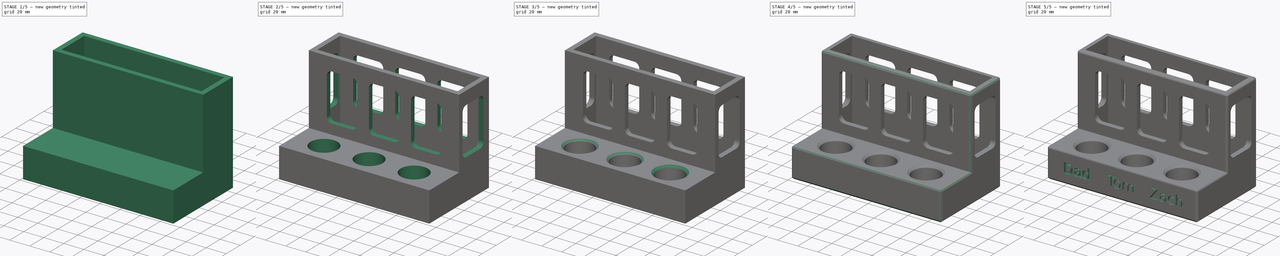
[diagram: build sequence overview — one tinted view per stage of 5, left to right]
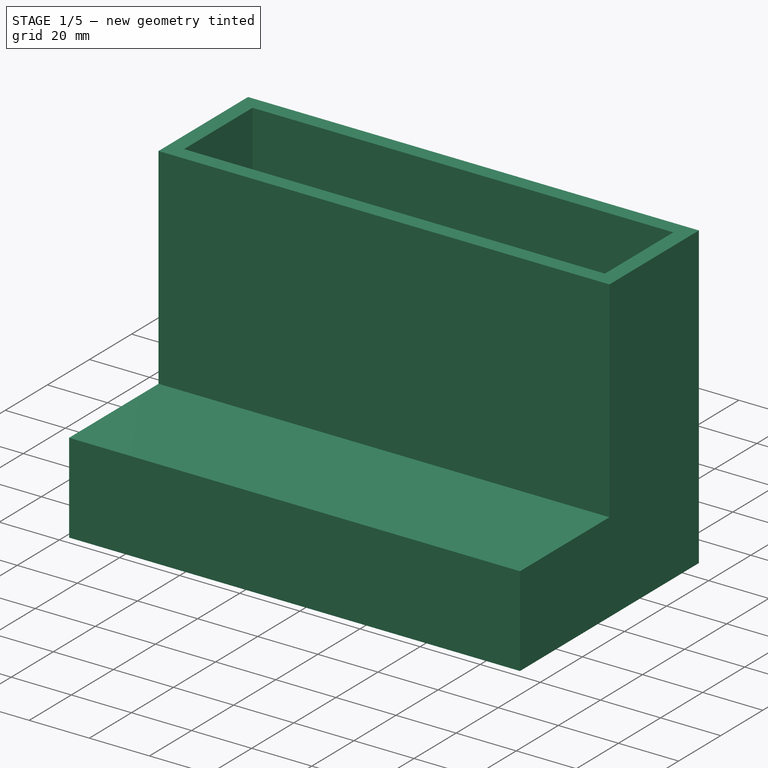
[diagram: stage 1 of 5 — iso view after this stage's code; geometry added in this stage tinted green]
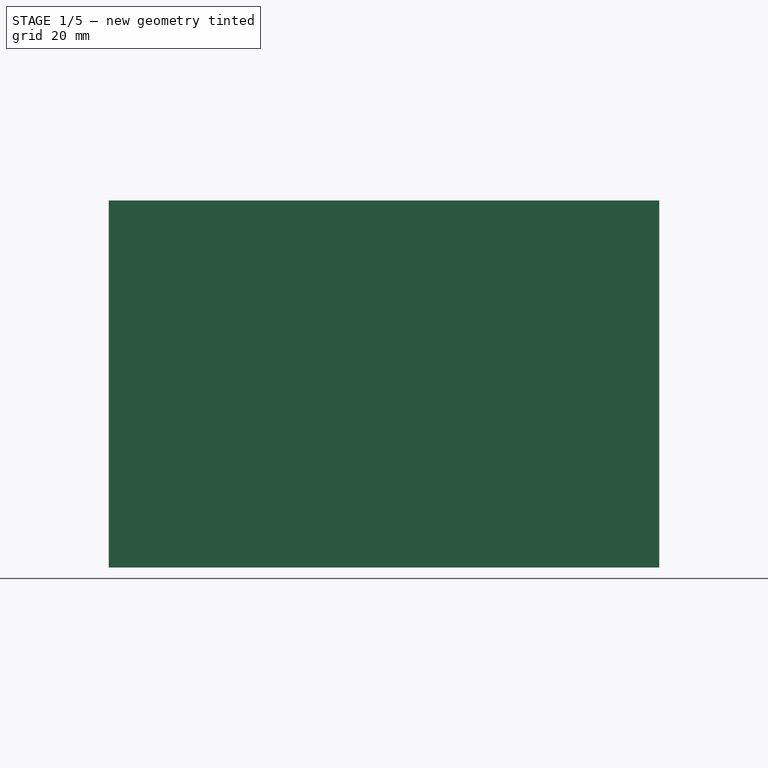
[diagram: stage 1 of 5 — front view after this stage's code; geometry added in this stage tinted green]
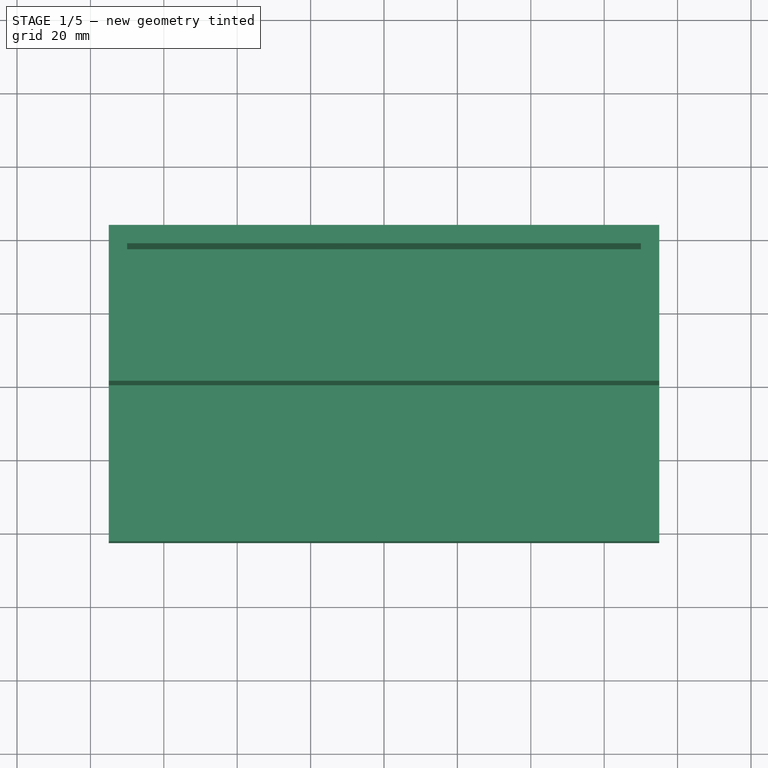
[diagram: stage 1 of 5 — top view after this stage's code; geometry added in this stage tinted green]
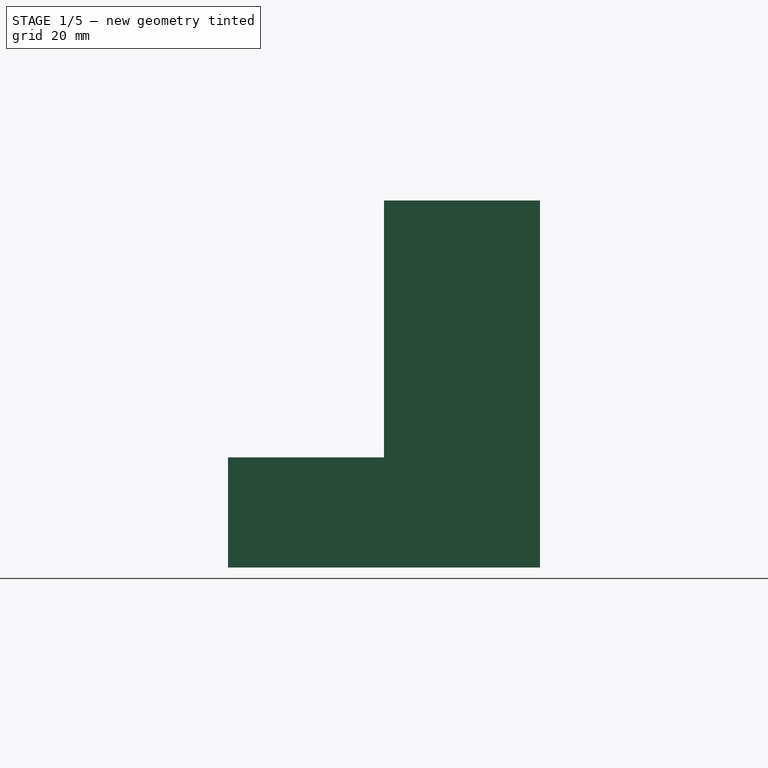
[diagram: stage 1 of 5 — right view after this stage's code; geometry added in this stage tinted green]
FCSTD DOCUMENT  (FreeCAD 1.2R20260429 (Git shallow))
Label: toothbrush holder
License: All rights reserved
LicenseURL: http://en.wikipedia.org/wiki/All_rights_reserved
objects: PartDesign::Pocket×10, Sketcher::SketchObject×8, PartDesign::Fillet×3, Part::Part2DObjectPython×3, PartDesign::Chamfer×2, PartDesign::Pad×1, App::Point×1, PartDesign::LinearPattern×1, PartDesign::Body×1
note: 70 computed .brp shape members not serialized (recipe doc carries the construction recipe); baked Part::Feature solids carry a one-line shape summary decoded from their .brp

FEATURE [Sketcher::SketchObject] Sketch
  ArcFitTolerance = 0
  AttachmentSupport = -> [XY_Plane]
  ExternalTypes = [0]
  FullyConstrained = true
  MakeInternals = false
  MapMode = 5
  sketch-geometry (4):
    g0: LineSegment StartX=-75 StartY=42.5 StartZ=0 EndX=-75 EndY=-42.5 EndZ=0
    g1: LineSegment StartX=-75 StartY=-42.5 StartZ=0 EndX=75 EndY=-42.5 EndZ=0
    g2: LineSegment StartX=75 StartY=-42.5 StartZ=0 EndX=75 EndY=42.5 EndZ=0
    g3: LineSegment StartX=75 StartY=42.5 StartZ=0 EndX=-75 EndY=42.5 EndZ=0
  constraints (11):
    c: Coincident(g0,g1)
    c: Coincident(g1,g2)
    c: Coincident(g2,g3)
    c: Coincident(g3,g0)
    c: Vertical(g0)
    c: Vertical(g2)
    c: Horizontal(g1)
    c: Horizontal(g3)
    c: DistanceX(g3,g3) = 150
    c: DistanceY(g2,g2) = 85
    c: Symmetric(g0,g1,g-1)
FEATURE [PartDesign::Pad] Pad
  Direction = (0,0,1)
  Length = 100
  Length2 = 10
  Profile = -> Sketch
  ReferenceAxis = -> Sketch [N_Axis]
  SideType = 0
  Suppressed = false
  Type = 0
  Type2 = 0
FEATURE [Sketcher::SketchObject] Sketch001
  ArcFitTolerance = 0
  AttachmentSupport = -> [Pad]
  ExternalGeometry = -> [Pad]
  ExternalTypes = [0]
  FullyConstrained = true
  MakeInternals = false
  MapMode = 5
  Placement = pos=(0,0,100) rot=(0,0,1;0rad)
  sketch-geometry (4):
    g0: LineSegment StartX=-70 StartY=37.5 StartZ=0 EndX=-70 EndY=5 EndZ=0
    g1: LineSegment StartX=-70 StartY=5 StartZ=0 EndX=70 EndY=5 EndZ=0
    g2: LineSegment StartX=70 StartY=5 StartZ=0 EndX=70 EndY=37.5 EndZ=0
    g3: LineSegment StartX=70 StartY=37.5 StartZ=0 EndX=-70 EndY=37.5 EndZ=0
  constraints (12):
    c: Coincident(g0,g1)
    c: Coincident(g1,g2)
    c: Coincident(g2,g3)
    c: Coincident(g3,g0)
    c: Vertical(g0)
    c: Vertical(g2)
    c: Horizontal(g1)
    c: Horizontal(g3)
    c: DistanceX(g-3,g0) = 5
    c: DistanceY(g0,g-3) = 5
    c: DistanceX(g2,g-4) = 5
    c: DistanceY(g-1,g0) = 5
FEATURE [PartDesign::Pocket] Pocket
  BaseFeature = -> Pad
  Direction = (0,0,-1)
  Length = 95
  Length2 = 5
  Profile = -> Sketch001
  ReferenceAxis = -> Sketch001 [N_Axis]
  SideType = 0
  Suppressed = false
  Type = 0
  Type2 = 0
FEATURE [App::Point] Origin001  label="Origin"
  Role = Origin
FEATURE [Sketcher::SketchObject] Sketch002
  ArcFitTolerance = 1e-06
  ExternalTypes = [0,0]
  FullyConstrained = false
  MakeInternals = false
  MapMode = 5
  Placement = pos=(0,0,100) rot=(0,0,1;0rad)
  sketch-geometry (4):
    g0: LineSegment StartX=-87.8763 StartY=0 StartZ=0 EndX=-87.8763 EndY=-47.5675 EndZ=0
    g1: LineSegment StartX=-87.8763 StartY=-47.5675 StartZ=0 EndX=89.2768 EndY=-47.5675 EndZ=0
    g2: LineSegment StartX=89.2768 StartY=-47.5675 StartZ=0 EndX=89.2768 EndY=0 EndZ=0
    g3: LineSegment StartX=89.2768 StartY=0 StartZ=0 EndX=-87.8763 EndY=0 EndZ=0
  constraints (9):
    c: Coincident(g0,g1)
    c: Coincident(g1,g2)
    c: Coincident(g2,g3)
    c: Coincident(g3,g0)
    c: Vertical(g0)
    c: Vertical(g2)
    c: Horizontal(g1)
    c: Horizontal(g3)
    c: PointOnObject(g0,g-1)
FEATURE [PartDesign::Pocket] Pocket001
  BaseFeature = -> Pocket
  Direction = (0,0,-1)
  Length = 70
  Length2 = 5
  Profile = -> Sketch002
  ReferenceAxis = -> Sketch002 [N_Axis]
  Refine = true
  SideType = 0
  Suppressed = false
  Type = 0
  Type2 = 0
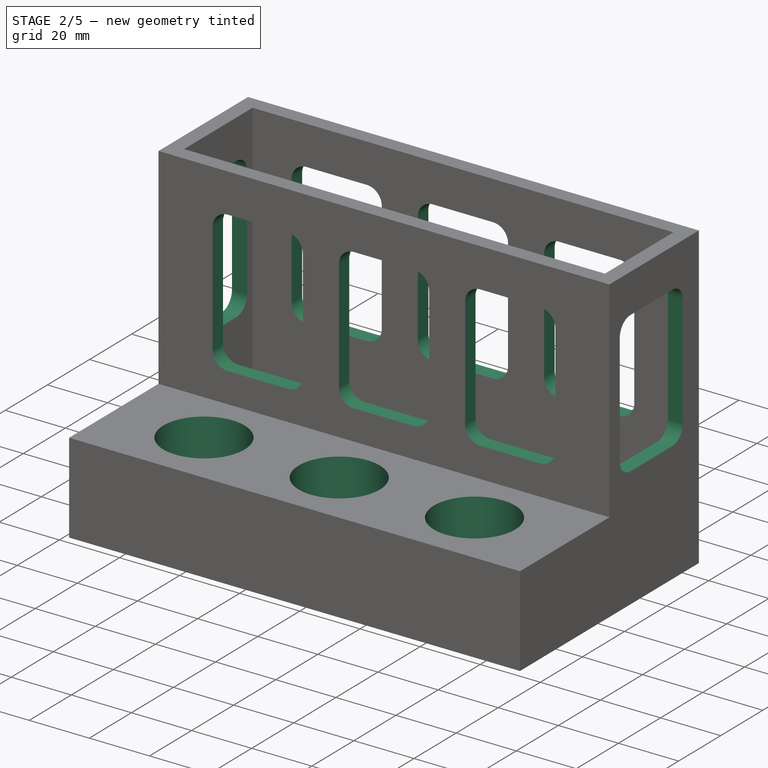
[diagram: stage 2 of 5 — iso view after this stage's code; geometry added in this stage tinted green]
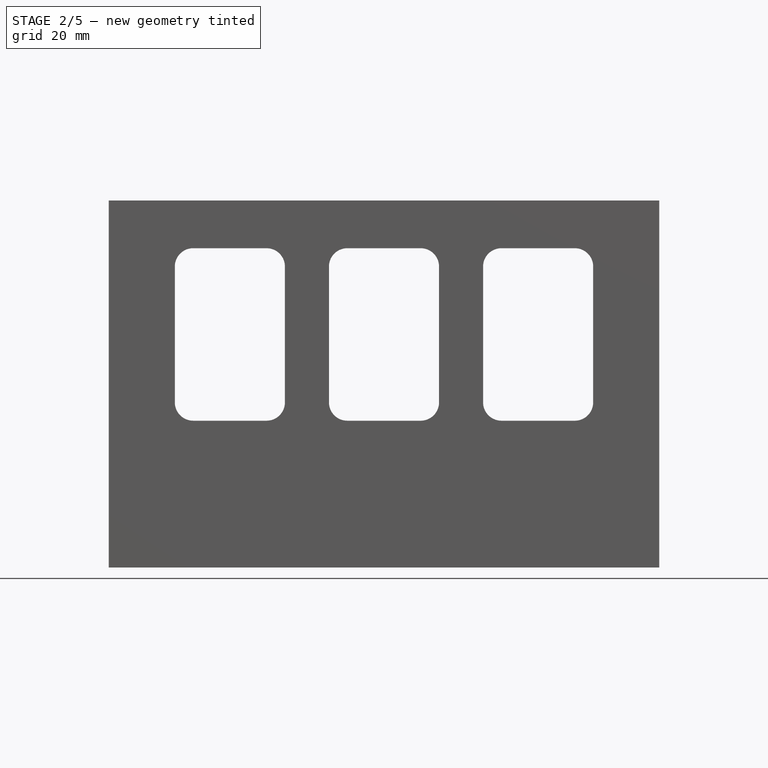
[diagram: stage 2 of 5 — front view after this stage's code; geometry added in this stage tinted green]
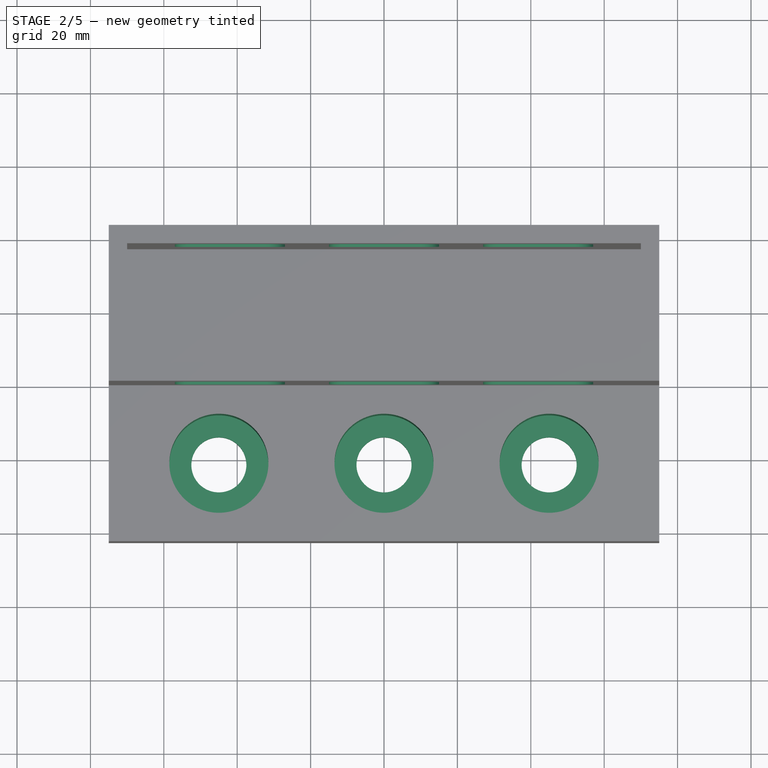
[diagram: stage 2 of 5 — top view after this stage's code; geometry added in this stage tinted green]
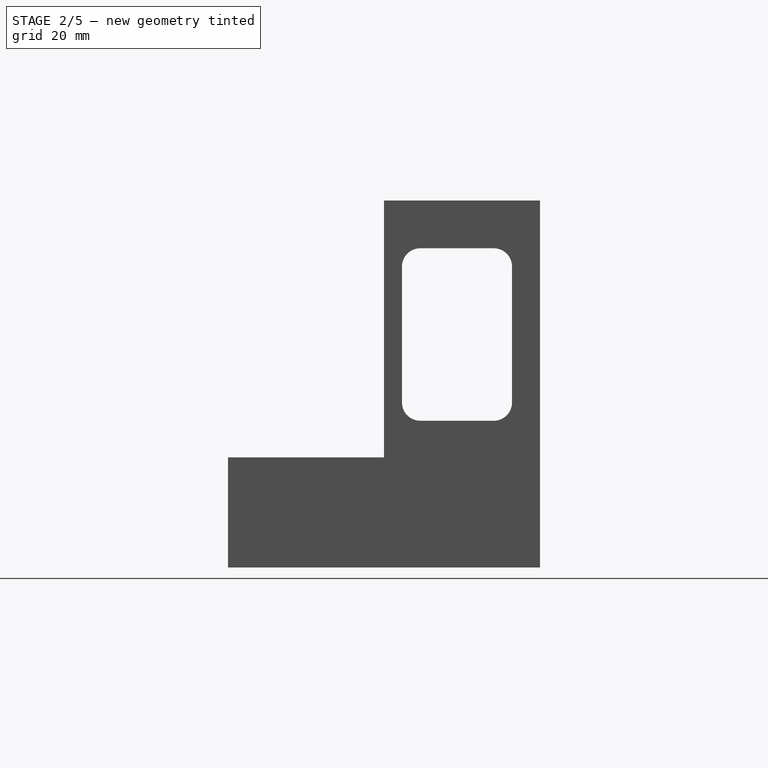
[diagram: stage 2 of 5 — right view after this stage's code; geometry added in this stage tinted green]
FEATURE [Sketcher::SketchObject] Sketch003
  ArcFitTolerance = 1e-06
  AttachmentSupport = -> [Pocket001]
  ExternalGeometry = -> [Pocket001]
  ExternalTypes = [0,0]
  FullyConstrained = false
  MakeInternals = false
  MapMode = 5
  Placement = pos=(0,0,30) rot=(0,0,1;0rad)
  sketch-geometry (7):
    g0: Circle CenterX=-45 CenterY=-21.25 CenterZ=0 NormalX=0 NormalY=0 NormalZ=1 AngleXU=0 Radius=13.5
    g1: Circle CenterX=0 CenterY=-21.25 CenterZ=0 NormalX=0 NormalY=0 NormalZ=1 AngleXU=0 Radius=13.5
    g2: Ellipse CenterX=45 CenterY=-21.25 CenterZ=0 NormalX=0 NormalY=0 NormalZ=1 MajorRadius=13.5 MinorRadius=13.5 AngleXU=-1.57119
    g3: LineSegment [constr] StartX=44.9947 StartY=-34.75 StartZ=0 EndX=45.0053 EndY=-7.75 EndZ=0
    g4: LineSegment [constr] StartX=58.5 StartY=-21.2553 StartZ=0 EndX=31.5 EndY=-21.2447 EndZ=0
    g5: GeomPoint [constr] X=45 Y=-21.2553 Z=0
    g6: GeomPoint [constr] X=45 Y=-21.2447 Z=0
  constraints (10):
    c: PointOnObject(g1,g-2)
    c: Equal(g1,g0)
    c: Horizontal(g0,g1)
    c: Horizontal(g1,g2)
    c: DistanceY(g-4,g0) = 21.25
    c: DistanceX(g0,g1) = 45
    c: Distance(g2,g1) = 45
    c: InternalAlignment(g3-g6 -> g2) x4
    c: Distance(g4,g4) = 27
    c: DistanceY(g3,g3) = 27
FEATURE [PartDesign::Pocket] Pocket002
  BaseFeature = -> Pocket001
  Direction = (0,0,-1)
  Length = 25
  Length2 = 5
  Profile = -> Sketch003
  ReferenceAxis = -> Sketch003 [N_Axis]
  Refine = true
  SideType = 0
  Suppressed = false
  Type = 0
  Type2 = 0
FEATURE [Sketcher::SketchObject] Sketch004
  ArcFitTolerance = 1e-06
  ExternalTypes = [0,0,0,0,0]
  FullyConstrained = false
  MakeInternals = false
  MapMode = 5
  Placement = pos=(0,0,5) rot=(0,0,1;0rad)
  sketch-geometry (3):
    g0: Circle CenterX=-45 CenterY=-21.25 CenterZ=0 NormalX=0 NormalY=0 NormalZ=1 AngleXU=0 Radius=7.5
    g1: Circle CenterX=0 CenterY=-21.25 CenterZ=0 NormalX=0 NormalY=0 NormalZ=1 AngleXU=0 Radius=7.5
    g2: Circle CenterX=45 CenterY=-21.25 CenterZ=0 NormalX=0 NormalY=0 NormalZ=1 AngleXU=0 Radius=7.5
  constraints (2):
    c: Diameter(g0) = 15
    c: Equal(g1,g0)
FEATURE [PartDesign::Pocket] Pocket003
  BaseFeature = -> Pocket002
  Direction = (0,0,-1)
  Length = 5
  Length2 = 5
  Profile = -> Sketch004
  ReferenceAxis = -> Sketch004 [N_Axis]
  Refine = true
  SideType = 0
  Suppressed = false
  Type = 0
  Type2 = 0
FEATURE [Sketcher::SketchObject] Sketch006
  ArcFitTolerance = 1e-06
  ExternalTypes = [0]
  FullyConstrained = true
  MakeInternals = false
  MapMode = 5
  Placement = pos=(0,0,5) rot=(0,0,1;0rad)
  sketch-geometry (8):
    g0: LineSegment StartX=-63 StartY=30.5 StartZ=0 EndX=-63 EndY=25.5 EndZ=0
    g1: LineSegment StartX=-63 StartY=25.5 StartZ=0 EndX=-58 EndY=25.5 EndZ=0
    g2: LineSegment StartX=-58 StartY=25.5 StartZ=0 EndX=-58 EndY=30.5 EndZ=0
    g3: LineSegment StartX=-58 StartY=30.5 StartZ=0 EndX=-63 EndY=30.5 EndZ=0
    g4: LineSegment StartX=-63 StartY=17 StartZ=0 EndX=-63 EndY=12 EndZ=0
    g5: LineSegment StartX=-63 StartY=12 StartZ=0 EndX=-58 EndY=12 EndZ=0
    g6: LineSegment StartX=-58 StartY=12 StartZ=0 EndX=-58 EndY=17 EndZ=0
    g7: LineSegment StartX=-58 StartY=17 StartZ=0 EndX=-63 EndY=17 EndZ=0
  constraints (24):
    c: Coincident(g0,g1)
    c: Coincident(g1,g2)
    c: Coincident(g2,g3)
    c: Coincident(g3,g0)
    c: Vertical(g0)
    c: Vertical(g2)
    c: Horizontal(g1)
    c: Horizontal(g3)
    c: Coincident(g4,g5)
    c: Coincident(g5,g6)
    c: Coincident(g6,g7)
    c: Coincident(g7,g4)
    c: Vertical(g4)
    c: Vertical(g6)
    c: Horizontal(g5)
    c: Horizontal(g7)
    c: DistanceX(g-3,g0) = 5
    c: DistanceY(g0,g0) = 5
    c: DistanceY(g4,g4) = 5
    c: DistanceX(g3,g3) = 5
    c: DistanceX(g7,g7) = 5
    c: DistanceX(g-3,g4) = 5
    c: DistanceY(g0,g-3) = 5
    c: DistanceY(g-3,g4) = 5
FEATURE [Sketcher::SketchObject] Sketch007
  ArcFitTolerance = 1e-06
  ExternalTypes = [0,0]
  FullyConstrained = true
  MakeInternals = false
  MapMode = 5
  Placement = pos=(0,0,0) rot=(1,0,0;1.5708rad)
  sketch-geometry (36):
    g0: LineSegment StartX=-57 StartY=82 StartZ=0 EndX=-57 EndY=45 EndZ=0
    g1: LineSegment StartX=-52 StartY=40 StartZ=0 EndX=-32 EndY=40 EndZ=0
    g2: LineSegment StartX=57 StartY=45 StartZ=0 EndX=57 EndY=82 EndZ=0
    g3: LineSegment StartX=52 StartY=87 StartZ=0 EndX=32 EndY=87 EndZ=0
    g4: ArcOfCircle CenterX=-52 CenterY=82 CenterZ=0 NormalX=0 NormalY=0 NormalZ=1 AngleXU=0 Radius=5 StartAngle=1.5708 EndAngle=3.14159
    g5: GeomPoint [constr] X=-57 Y=87 Z=0
    g6: ArcOfCircle CenterX=-52 CenterY=45 CenterZ=0 NormalX=0 NormalY=0 NormalZ=1 AngleXU=0 Radius=5 StartAngle=3.14159 EndAngle=4.71239
    g7: GeomPoint [constr] X=-57 Y=40 Z=0
    g8: ArcOfCircle CenterX=52 CenterY=45 CenterZ=0 NormalX=0 NormalY=0 NormalZ=1 AngleXU=0 Radius=5 StartAngle=4.71239 EndAngle=6.28319
    g9: GeomPoint [constr] X=57 Y=40 Z=0
    g10: ArcOfCircle CenterX=52 CenterY=82 CenterZ=0 NormalX=0 NormalY=0 NormalZ=1 AngleXU=0 Radius=5 StartAngle=1.53e-14 EndAngle=1.5708
    g11: GeomPoint [constr] X=57 Y=87 Z=0
    g12: LineSegment StartX=27 StartY=45 StartZ=0 EndX=27 EndY=82 EndZ=0
    g13: LineSegment StartX=-27 StartY=82 StartZ=0 EndX=-27 EndY=45 EndZ=0
    g14: LineSegment StartX=-32 StartY=87 StartZ=0 EndX=-52 EndY=87 EndZ=0
    g15: LineSegment StartX=32 StartY=40 StartZ=0 EndX=52 EndY=40 EndZ=0
    g16: ArcOfCircle CenterX=-32 CenterY=82 CenterZ=0 NormalX=0 NormalY=0 NormalZ=1 AngleXU=0 Radius=5 StartAngle=-1.03642e-11 EndAngle=1.5708
    g17: GeomPoint [constr] X=-27 Y=87 Z=0
    g18: ArcOfCircle CenterX=-32 CenterY=45 CenterZ=0 NormalX=0 NormalY=0 NormalZ=1 AngleXU=0 Radius=5 StartAngle=4.71239 EndAngle=6.28319
    g19: GeomPoint [constr] X=-27 Y=40 Z=0
    g20: ArcOfCircle CenterX=32 CenterY=45 CenterZ=0 NormalX=0 NormalY=0 NormalZ=1 AngleXU=0 Radius=5 StartAngle=3.14159 EndAngle=4.71239
    g21: GeomPoint [constr] X=27 Y=40 Z=0
    g22: ArcOfCircle CenterX=32 CenterY=82 CenterZ=0 NormalX=0 NormalY=0 NormalZ=1 AngleXU=0 Radius=5 StartAngle=1.5708 EndAngle=3.14159
    g23: GeomPoint [constr] X=27 Y=87 Z=0
    g24: LineSegment StartX=-15 StartY=82 StartZ=0 EndX=-15 EndY=45 EndZ=0
    g25: LineSegment StartX=-10 StartY=40 StartZ=0 EndX=10 EndY=40 EndZ=0
    g26: LineSegment StartX=15 StartY=45 StartZ=0 EndX=15 EndY=82 EndZ=0
    g27: LineSegment StartX=10 StartY=87 StartZ=0 EndX=-10 EndY=87 EndZ=0
    g28: ArcOfCircle CenterX=10 CenterY=82 CenterZ=0 NormalX=0 NormalY=0 NormalZ=1 AngleXU=0 Radius=5 StartAngle=2.1e-14 EndAngle=1.5708
    g29: GeomPoint [constr] X=15 Y=87 Z=0
    g30: ArcOfCircle CenterX=10 CenterY=45 CenterZ=0 NormalX=0 NormalY=0 NormalZ=1 AngleXU=0 Radius=5 StartAngle=4.71239 EndAngle=6.28319
    g31: GeomPoint [constr] X=15 Y=40 Z=0
    g32: ArcOfCircle CenterX=-10 CenterY=45 CenterZ=0 NormalX=0 NormalY=0 NormalZ=1 AngleXU=0 Radius=5 StartAngle=3.14159 EndAngle=4.71239
    g33: GeomPoint [constr] X=-15 Y=40 Z=0
    g34: ArcOfCircle CenterX=-10 CenterY=82 CenterZ=0 NormalX=0 NormalY=0 NormalZ=1 AngleXU=0 Radius=5 StartAngle=1.5708 EndAngle=3.14159
    g35: GeomPoint [constr] X=-15 Y=87 Z=0
  constraints (82):
    c: Vertical(g0)
    c: Vertical(g2)
    c: DistanceX(g-3,g5) = 15
    c: DistanceX(g11,g-4) = 15
    c: DistanceY(g5,g-3) = 10
    c: DistanceY(g-3,g7) = 10
    c: PointOnObject(g5,g0)
    c: Tangent(g14,g4) = -1.5708
    c: Tangent(g0,g4) = -1.5708
    c: PointOnObject(g7,g0)
    c: Tangent(g0,g6) = -1.5708
    c: Tangent(g1,g6) = -1.5708
    c: PointOnObject(g9,g2)
    c: Tangent(g15,g8) = -1.5708
    c: Tangent(g2,g8) = -1.5708
    c: PointOnObject(g11,g2)
    c: Tangent(g3,g10) = -1.5708
    c: Tangent(g2,g10) = -1.5708
    c: Equal(g10,g8)
    c: Equal(g8,g6)
    c: Equal(g6,g4)
    c: Radius(g4) = 5
    c: Vertical(g12)
    c: Vertical(g13)
    c: Horizontal(g3)
    c: Horizontal(g14)
    c: PointOnObject(g5,g14)
    c: PointOnObject(g11,g3)
    c: Horizontal(g1)
    c: Horizontal(g15)
    c: PointOnObject(g7,g1)
    c: PointOnObject(g9,g15)
    c: Symmetric(g17,g23,g-2)
    c: PointOnObject(g17,g14)
    c: PointOnObject(g17,g13)
    c: Tangent(g14,g16) = -1.5708
    c: Tangent(g13,g16) = 1.5708
    c: PointOnObject(g19,g13)
    c: PointOnObject(g19,g1)
    c: Tangent(g13,g18) = 1.5708
    c: Tangent(g1,g18) = -1.5708
    c: PointOnObject(g21,g15)
    c: PointOnObject(g21,g12)
    c: Tangent(g15,g20) = -1.5708
    c: Tangent(g12,g20) = 1.5708
    c: PointOnObject(g23,g3)
    c: PointOnObject(g23,g12)
    c: Tangent(g3,g22) = -1.5708
    c: Tangent(g12,g22) = 1.5708
    c: Equal(g22,g16)
    c: Equal(g16,g18)
    c: Equal(g18,g20)
    c: Equal(g20,g10)
    c: DistanceY(g-3,g15) = 10
    c: DistanceX(g14,g14) = 20
    c: Vertical(g24)
    c: Vertical(g26)
    c: Horizontal(g25)
    c: PointOnObject(g29,g27)
    c: PointOnObject(g29,g26)
    c: Tangent(g27,g28) = -1.5708
    c: Tangent(g26,g28) = -1.5708
    c: PointOnObject(g31,g26)
    c: PointOnObject(g31,g25)
    c: Tangent(g26,g30) = -1.5708
    c: Tangent(g25,g30) = -1.5708
    c: PointOnObject(g33,g25)
    c: PointOnObject(g33,g24)
    c: Tangent(g25,g32) = -1.5708
    c: Tangent(g24,g32) = -1.5708
    c: PointOnObject(g35,g24)
    c: PointOnObject(g35,g27)
    c: Tangent(g24,g34) = -1.5708
    c: Tangent(g27,g34) = -1.5708
    c: Equal(g34,g28)
    c: Equal(g28,g30)
    c: Equal(g30,g32)
    c: Equal(g32,g4)
    c: DistanceX(g27,g27) = 20
    c: Symmetric(g27,g27,g-2)
    c: Horizontal(g25,g1)
    c: Horizontal(g27,g4)
FEATURE [Sketcher::SketchObject] Sketch008
  ArcFitTolerance = 1e-06
  ExternalTypes = [0,0]
  FullyConstrained = false
  MakeInternals = false
  MapMode = 5
  Placement = pos=(-75,0,0) rot=(0.57735,-0.57735,-0.57735;2.0944rad)
  sketch-geometry (12):
    g0: LineSegment StartX=-34.8916 StartY=81.9854 StartZ=0 EndX=-34.8916 EndY=44.9854 EndZ=0
    g1: LineSegment StartX=-29.8916 StartY=39.9854 StartZ=0 EndX=-9.89165 EndY=39.9854 EndZ=0
    g2: LineSegment StartX=-4.89165 StartY=44.9854 StartZ=0 EndX=-4.89165 EndY=81.9854 EndZ=0
    g3: LineSegment StartX=-9.89165 StartY=86.9854 StartZ=0 EndX=-29.8916 EndY=86.9854 EndZ=0
    g4: ArcOfCircle CenterX=-29.8916 CenterY=81.9854 CenterZ=0 NormalX=0 NormalY=0 NormalZ=1 AngleXU=0 Radius=5 StartAngle=1.5708 EndAngle=3.14159
    g5: GeomPoint [constr] X=-34.8916 Y=86.9854 Z=0
    g6: ArcOfCircle CenterX=-9.89165 CenterY=81.9854 CenterZ=0 NormalX=0 NormalY=0 NormalZ=1 AngleXU=0 Radius=5 StartAngle=-9e-16 EndAngle=1.5708
    g7: GeomPoint [constr] X=-4.89165 Y=86.9854 Z=0
    g8: ArcOfCircle CenterX=-9.89165 CenterY=44.9854 CenterZ=0 NormalX=0 NormalY=0 NormalZ=1 AngleXU=0 Radius=5 StartAngle=4.71239 EndAngle=6.28319
    g9: GeomPoint [constr] X=-4.89165 Y=39.9854 Z=0
    g10: ArcOfCircle CenterX=-29.8916 CenterY=44.9854 CenterZ=0 NormalX=0 NormalY=0 NormalZ=1 AngleXU=0 Radius=5 StartAngle=3.14159 EndAngle=4.71239
    g11: GeomPoint [constr] X=-34.8916 Y=39.9854 Z=0
  constraints (26):
    c: Vertical(g0)
    c: Vertical(g2)
    c: Horizontal(g1)
    c: Horizontal(g3)
    c: PointOnObject(g5,g3)
    c: PointOnObject(g5,g0)
    c: Tangent(g3,g4) = -1.5708
    c: Tangent(g0,g4) = -1.5708
    c: PointOnObject(g7,g3)
    c: PointOnObject(g7,g2)
    c: Tangent(g3,g6) = -1.5708
    c: Tangent(g2,g6) = -1.5708
    c: PointOnObject(g9,g2)
    c: PointOnObject(g9,g1)
    c: Tangent(g2,g8) = -1.5708
    c: Tangent(g1,g8) = -1.5708
    c: PointOnObject(g11,g0)
    c: PointOnObject(g11,g1)
    c: Tangent(g0,g10) = -1.5708
    c: Tangent(g1,g10) = -1.5708
    c: Equal(g4,g6)
    c: Equal(g6,g8)
    c: Equal(g8,g10)
    c: Radius(g4) = 5
    c: DistanceY(g1,g3) = 47
    c: DistanceX(g3,g3) = 20
FEATURE [PartDesign::Pocket] Pocket004
  BaseFeature = -> Pocket003
  Direction = (0,1,-2e-16)
  Length = 5
  Length2 = 5
  Profile = -> Sketch007
  ReferenceAxis = -> Sketch007 [N_Axis]
  Refine = true
  SideType = 0
  Suppressed = false
  Type = 1
  Type2 = 0
FEATURE [PartDesign::Pocket] Pocket005
  BaseFeature = -> Pocket004
  Direction = (1,-1e-16,1e-16)
  Length = 5
  Length2 = 5
  Profile = -> Sketch008
  ReferenceAxis = -> Sketch008 [N_Axis]
  Refine = true
  SideType = 0
  Suppressed = false
  Type = 1
  Type2 = 0
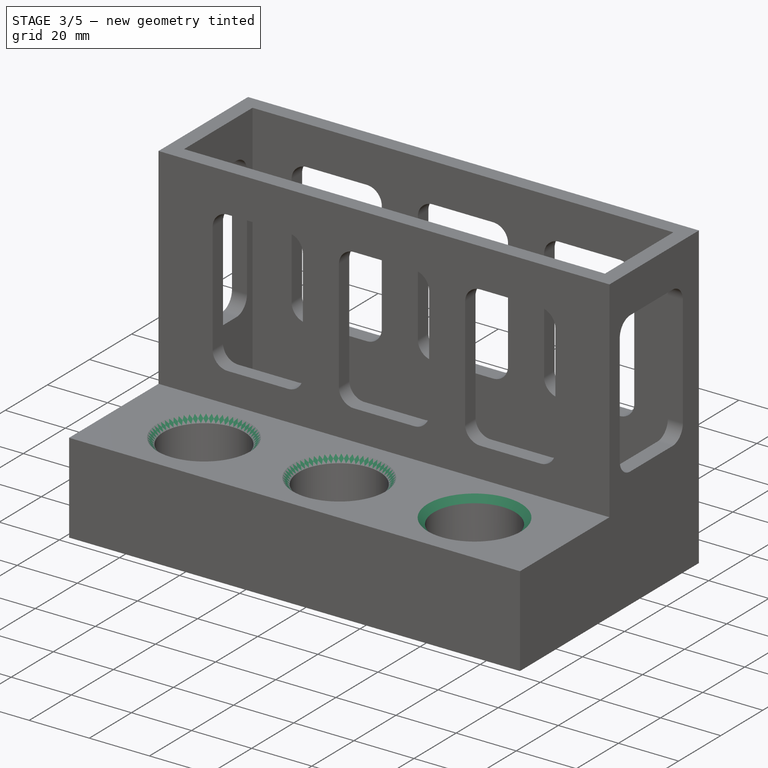
[diagram: stage 3 of 5 — iso view after this stage's code; geometry added in this stage tinted green]
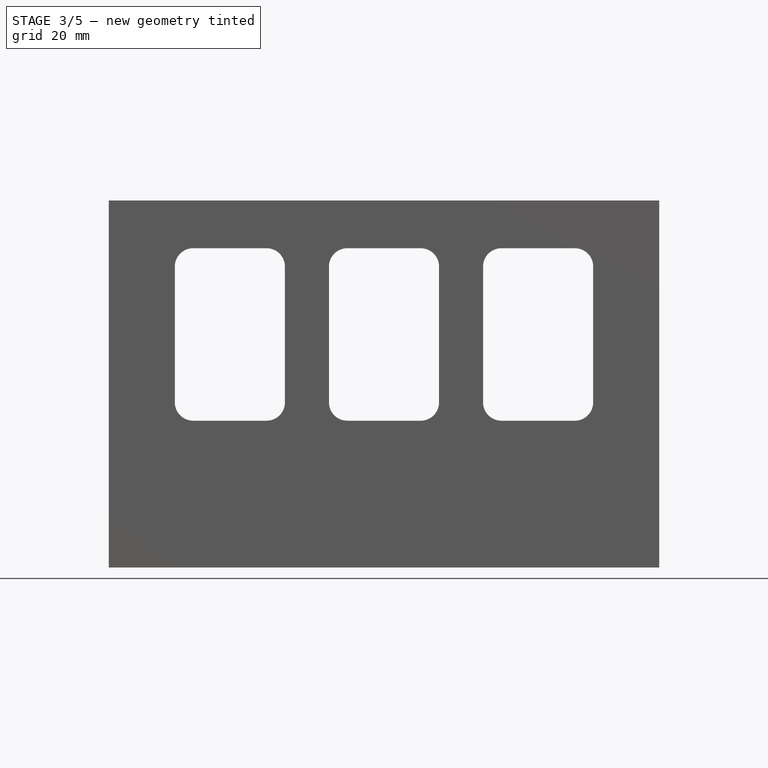
[diagram: stage 3 of 5 — front view after this stage's code; geometry added in this stage tinted green]
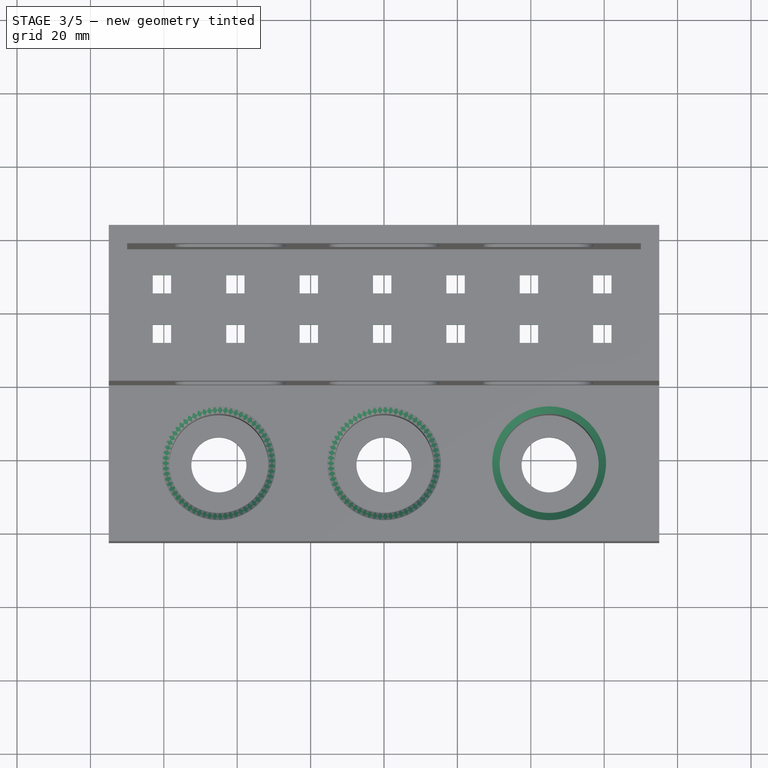
[diagram: stage 3 of 5 — top view after this stage's code; geometry added in this stage tinted green]
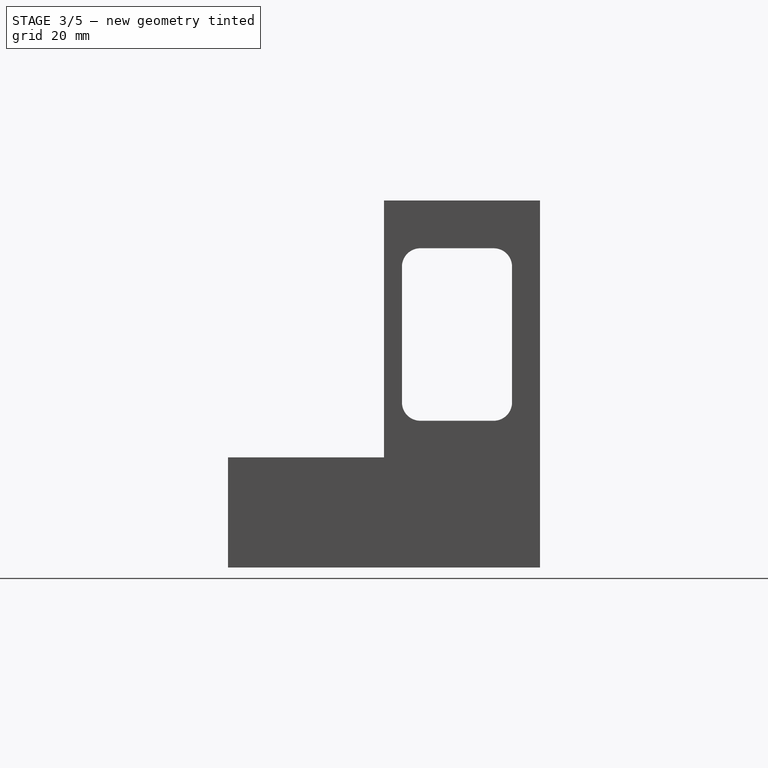
[diagram: stage 3 of 5 — right view after this stage's code; geometry added in this stage tinted green]
FEATURE [PartDesign::Pocket] Pocket006
  BaseFeature = -> Pocket005
  Direction = (0,0,-1)
  Length = 5
  Length2 = 5
  Profile = -> Sketch006
  ReferenceAxis = -> Sketch006 [N_Axis]
  Refine = true
  SideType = 0
  Suppressed = false
  Type = 0
  Type2 = 0
FEATURE [PartDesign::LinearPattern] LinearPattern
  BaseFeature = -> Pocket006
  Direction = -> Sketch006 [H_Axis]
  Direction2 = -> Sketch006 [V_Axis]
  Length = 120
  Length2 = 100
  Mode = 0
  Mode2 = 0
  Occurrences = 7
  Occurrences2 = 1
  Offset = 20
  Offset2 = 100
  Originals = -> [Pocket006]
  Refine = true
  Reversed2 = false
  SpacingPattern = [0]
  SpacingPattern2 = [0]
  Spacings = [-1,-1,-1,-1,-1,-1]
  Suppressed = false
  TransformMode = 0
FEATURE [PartDesign::Chamfer] Chamfer
  Angle = 45
  Base = -> LinearPattern [Edge113,Edge114,Edge115]
  BaseFeature = -> LinearPattern
  ChamferType = 0
  FlipDirection = false
  Refine = true
  Size = 2
  Size2 = 1
  SupportTransform = false
  Suppressed = false
  UseAllEdges = false
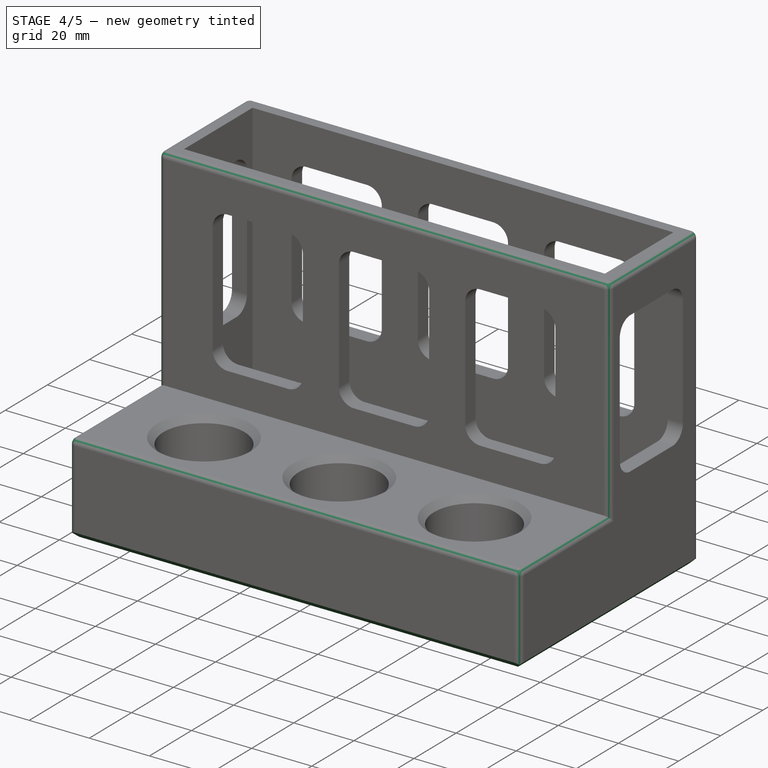
[diagram: stage 4 of 5 — iso view after this stage's code; geometry added in this stage tinted green]
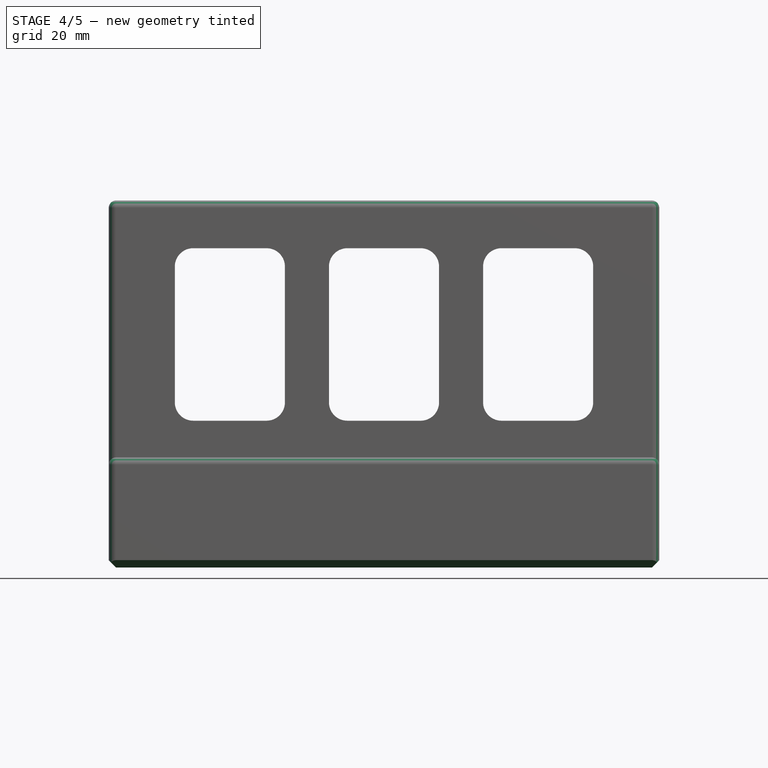
[diagram: stage 4 of 5 — front view after this stage's code; geometry added in this stage tinted green]
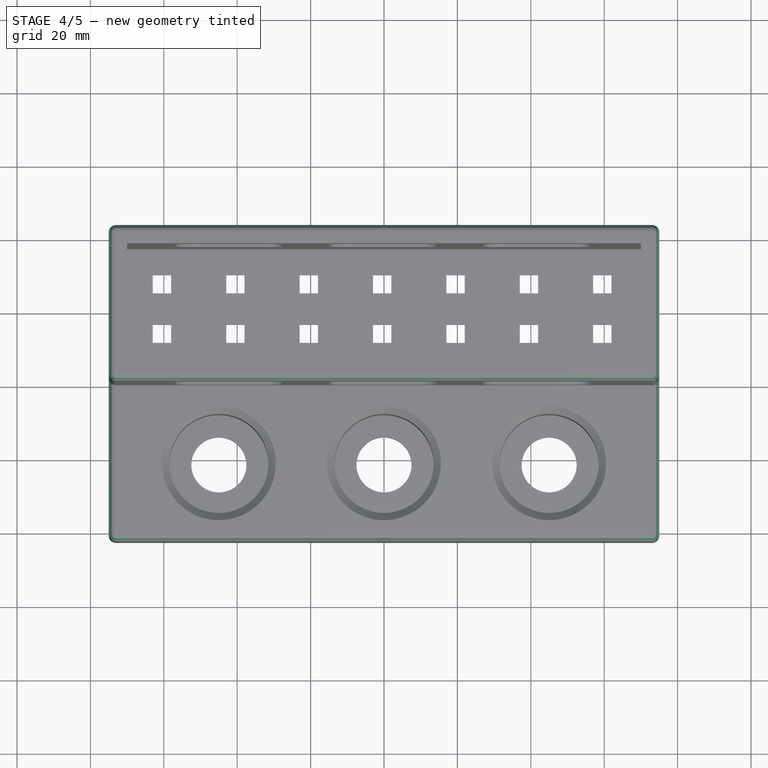
[diagram: stage 4 of 5 — top view after this stage's code; geometry added in this stage tinted green]
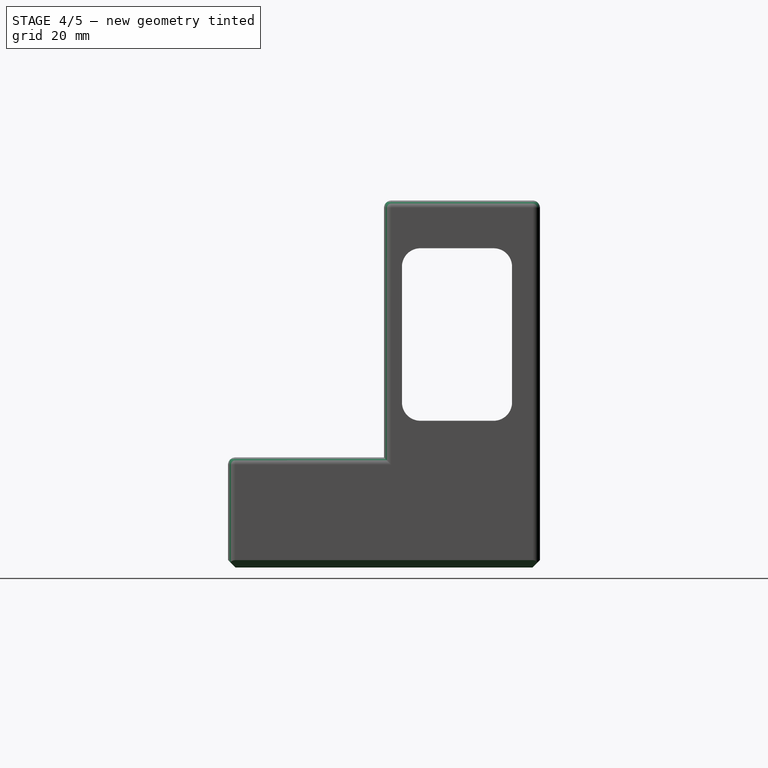
[diagram: stage 4 of 5 — right view after this stage's code; geometry added in this stage tinted green]
FEATURE [PartDesign::Chamfer] Chamfer001
  Angle = 45
  Base = -> Chamfer [Edge37,Edge145,Edge61,Edge49]
  BaseFeature = -> Chamfer
  ChamferType = 0
  FlipDirection = false
  Refine = true
  Size = 2
  Size2 = 1
  SupportTransform = false
  Suppressed = false
  UseAllEdges = false
FEATURE [PartDesign::Fillet] Fillet
  Base = -> Chamfer001 [Edge1,Edge17,Edge4,Edge5,Edge54,Edge28]
  BaseFeature = -> Chamfer001
  Radius = 2
  Refine = true
  SupportTransform = false
  Suppressed = false
  UseAllEdges = false
FEATURE [PartDesign::Fillet] Fillet001
  Base = -> Fillet [Edge4,Edge33,Edge31]
  BaseFeature = -> Fillet
  Radius = 2
  Refine = true
  SupportTransform = false
  Suppressed = false
  UseAllEdges = false
FEATURE [PartDesign::Fillet] Fillet002
  Base = -> Fillet001 [Edge33,Edge5,Edge29,Edge31]
  BaseFeature = -> Fillet001
  Radius = 2
  Refine = true
  SupportTransform = false
  Suppressed = false
  UseAllEdges = false
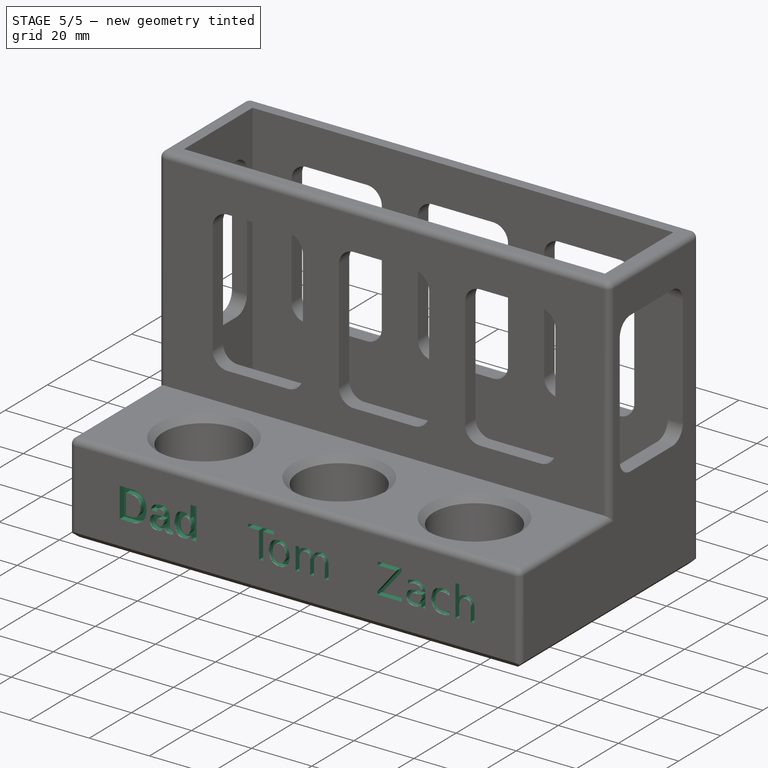
[diagram: stage 5 of 5 — iso view after this stage's code; geometry added in this stage tinted green]
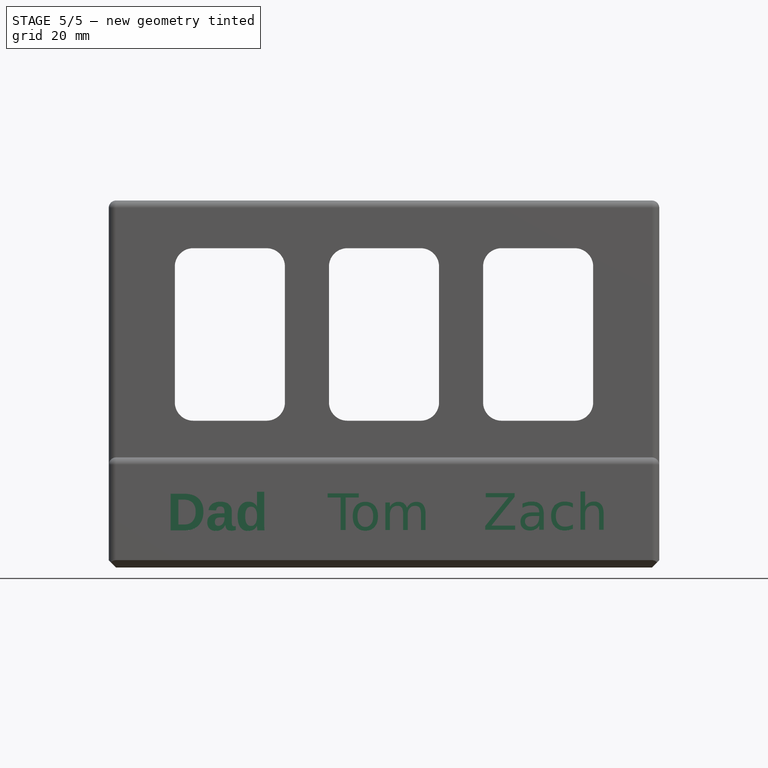
[diagram: stage 5 of 5 — front view after this stage's code; geometry added in this stage tinted green]
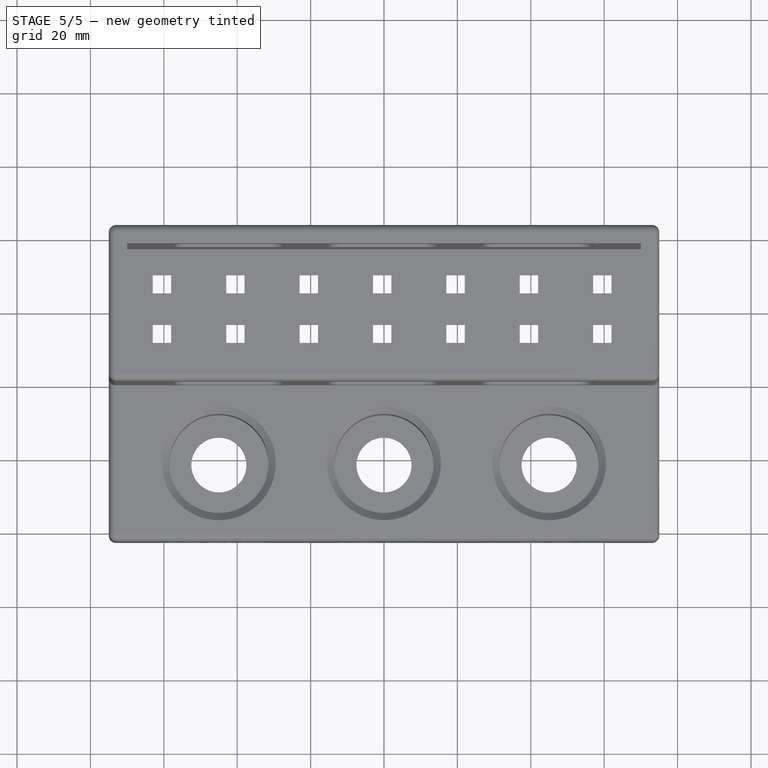
[diagram: stage 5 of 5 — top view after this stage's code; geometry added in this stage tinted green]
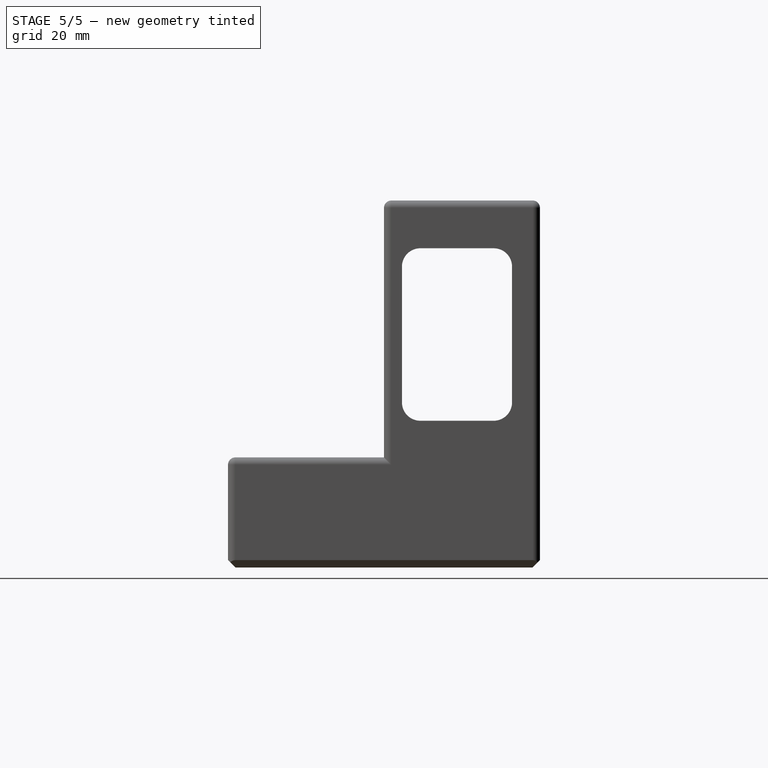
[diagram: stage 5 of 5 — right view after this stage's code; geometry added in this stage tinted green]
FEATURE [Part::Part2DObjectPython] ShapeString  # Draft 2D object (typed FeaturePython)
  FontFile = <path>
  Fuse = false
  Justification = 6
  JustificationReference = 0
  KeepLeftMargin = false
  MakeFace = true
  ObliqueAngle = 0
  Placement = pos=(-58.13,-42.5,10.1091) rot=(1,0,0;1.5708rad)
  ScaleToSize = true
  Size = 10
  String =    Dad
  Tracking = 0
FEATURE [Part::Part2DObjectPython] ShapeString001  # Draft 2D object (typed FeaturePython)
  FontFile = <path>
  Fuse = false
  Justification = 6
  JustificationReference = 0
  KeepLeftMargin = false
  MakeFace = true
  ObliqueAngle = 0
  Placement = pos=(-15.3515,-42.5,10.2068) rot=(1,0,0;1.5708rad)
  ScaleToSize = true
  Size = 10
  String = Tom
  Tracking = 0
FEATURE [Part::Part2DObjectPython] ShapeString002  # Draft 2D object (typed FeaturePython)
  FontFile = <path>
  Fuse = false
  Justification = 6
  JustificationReference = 0
  KeepLeftMargin = false
  MakeFace = true
  ObliqueAngle = 0
  Placement = pos=(27.5853,-42.5,10.2743) rot=(1,0,0;1.5708rad)
  ScaleToSize = true
  Size = 10
  String = Zach
  Tracking = 0
FEATURE [PartDesign::Pocket] Pocket007
  BaseFeature = -> Fillet002
  Direction = (0,1,-2e-16)
  Length = 2
  Length2 = 5
  Profile = -> ShapeString
  ReferenceAxis = -> ShapeString [N_Axis]
  Refine = true
  SideType = 0
  Suppressed = false
  Type = 0
  Type2 = 0
FEATURE [PartDesign::Pocket] Pocket008
  BaseFeature = -> Pocket007
  Direction = (0,1,-2e-16)
  Length = 2
  Length2 = 5
  Profile = -> ShapeString001
  ReferenceAxis = -> ShapeString001 [N_Axis]
  Refine = true
  SideType = 0
  Suppressed = false
  Type = 0
  Type2 = 0
FEATURE [PartDesign::Pocket] Pocket009
  BaseFeature = -> Pocket008
  Direction = (0,1,-2e-16)
  Length = 2
  Length2 = 5
  Profile = -> ShapeString002
  ReferenceAxis = -> ShapeString002 [N_Axis]
  Refine = true
  SideType = 0
  Suppressed = false
  Type = 0
  Type2 = 0
FEATURE [PartDesign::Body] Body
  AllowCompound = false
  Group = -> [Sketch,Pad,Sketch001,Pocket,Sketch002,Pocket001,Sketch003,Pocket002,Sketch004,Pocket003,Sketch006,Sketch007,Sketch008,Pocket004,Pocket005,Pocket006,LinearPattern,Chamfer,Chamfer001,Fillet,Fillet001,Fillet002,ShapeString,ShapeString001,ShapeString002,Pocket007,Pocket008,Pocket009]
  Origin = -> Origin
  Tip = -> Pocket009
note: 3 file-system paths scrubbed to <path> (originals preserved in the JSON sidecar)
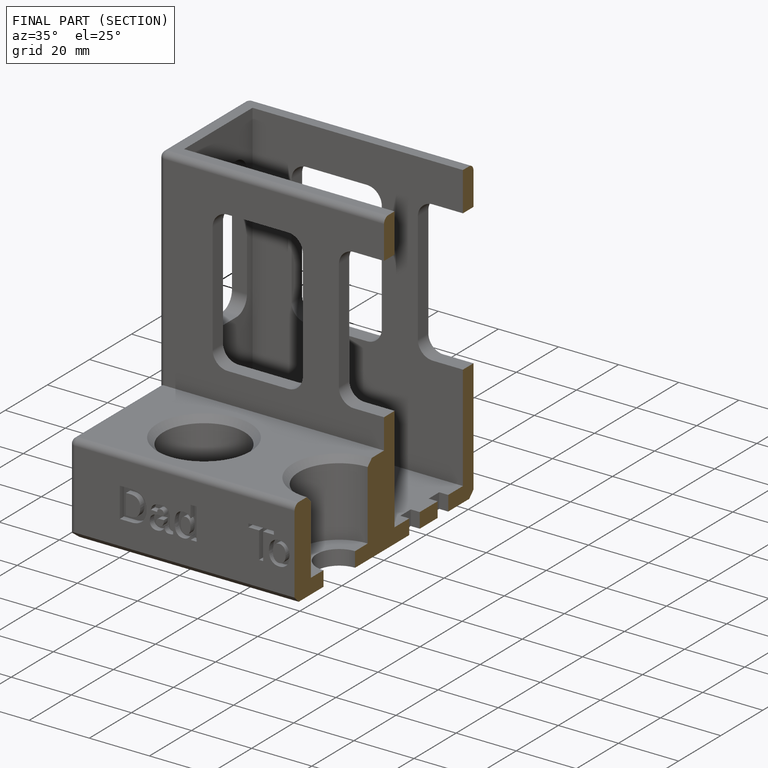
[diagram: finished part — half-section view (interior)]
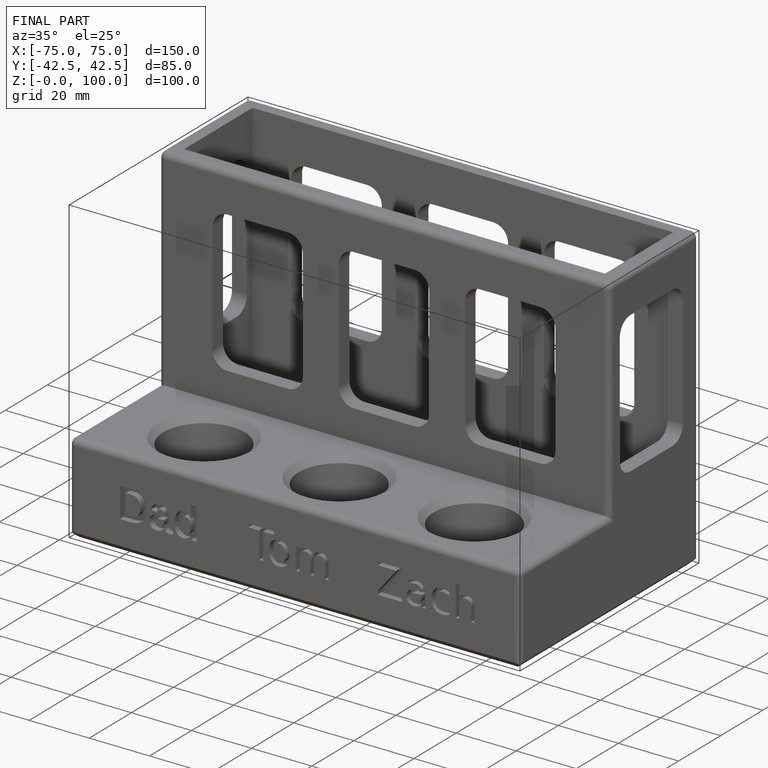
[diagram: finished part — iso view with bounding-box wireframe]
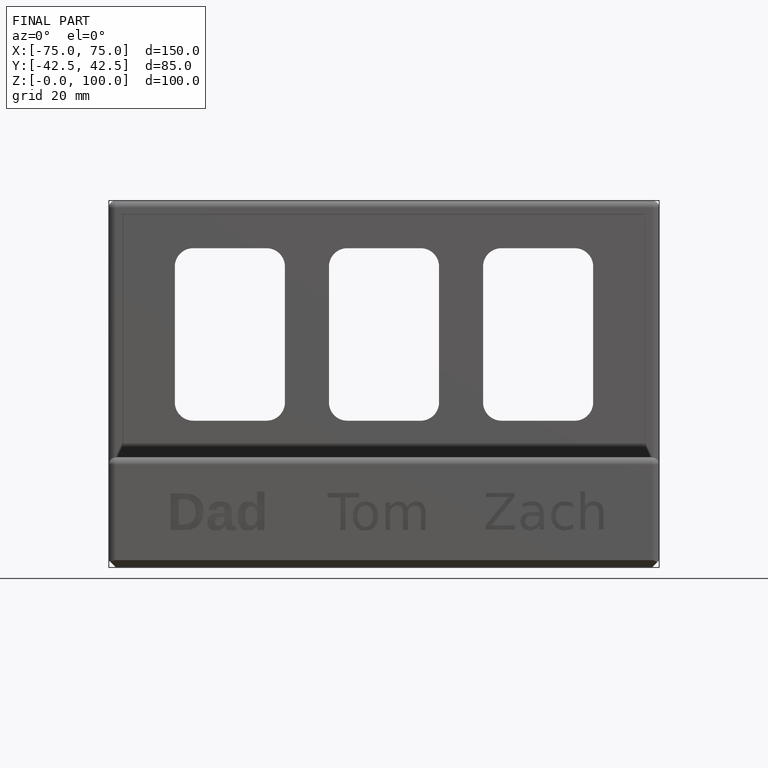
[diagram: finished part — front view with bounding-box wireframe]
